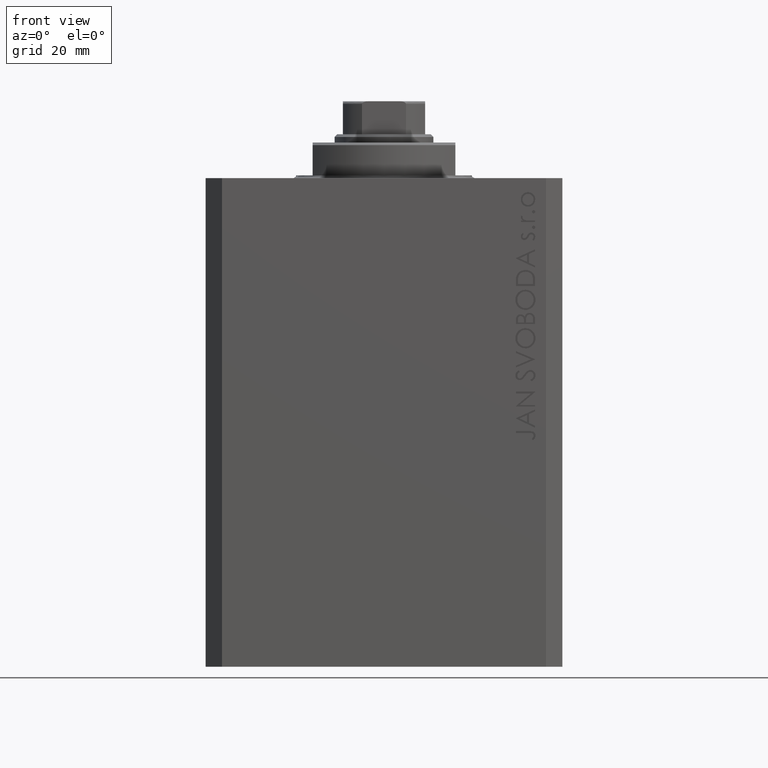
[diagram: clean part render]
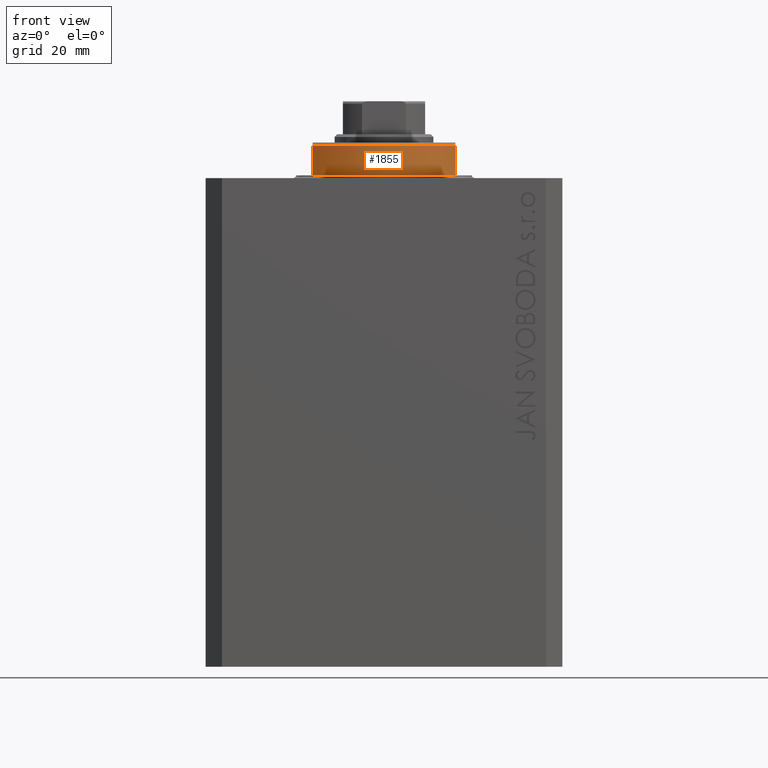
[diagram: same view with one face highlighted and labeled with its STEP entity id]
A machine part, front view. The second image highlights one B-rep face of the part: STEP entity #1855.
In plain terms, the highlighted cylindrical surface (partial cylindrical patch) has radius 16 mm, axis along (0, 0, -1).
Its self-contained STEP definition (entity closure, byte-faithful):
#1471 = EDGE_CURVE ( 'NONE', #20022, #43328, #22181, .T. ) ;
#1799 = DIRECTION ( 'NONE',  ( 1.000000000000000000, 0.000000000000000000, 0.000000000000000000 ) ) ;
#1855 = ADVANCED_FACE ( 'NONE', ( #27358 ), #32588, .T. ) ;
#2316 = VERTEX_POINT ( 'NONE', #42524 ) ;
#2938 = DIRECTION ( 'NONE',  ( 1.000000000000000000, 0.000000000000000000, 0.000000000000000000 ) ) ;
#3307 = VECTOR ( 'NONE', #11570, 1000.000000000000000 ) ;
#3411 = CARTESIAN_POINT ( 'NONE',  ( 0.000000000000000000, 0.000000000000000000, -6.500000000000000000 ) ) ;
#3580 = EDGE_CURVE ( 'NONE', #2316, #12103, #29535, .T. ) ;
#8202 = ORIENTED_EDGE ( 'NONE', *, *, #40276, .T. ) ;
#8541 = DIRECTION ( 'NONE',  ( 0.000000000000000000, 0.000000000000000000, -1.000000000000000000 ) ) ;
#9196 = ORIENTED_EDGE ( 'NONE', *, *, #1471, .F. ) ;
#9324 = CARTESIAN_POINT ( 'NONE',  ( 13.00000000000000000, -9.327379053088815652, -6.000000000000023981 ) ) ;
#11570 = DIRECTION ( 'NONE',  ( 0.000000000000000000, 0.000000000000000000, -1.000000000000000000 ) ) ;
#12103 = VERTEX_POINT ( 'NONE', #20903 ) ;
#12441 = DIRECTION ( 'NONE',  ( -1.000000000000000000, 0.000000000000000000, 0.000000000000000000 ) ) ;
#14153 = ORIENTED_EDGE ( 'NONE', *, *, #47082, .T. ) ;
#16160 = CARTESIAN_POINT ( 'NONE',  ( 0.000000000000000000, 0.000000000000000000, -0.4999999999999995559 ) ) ;
#20022 = VERTEX_POINT ( 'NONE', #36257 ) ;
#20105 = AXIS2_PLACEMENT_3D ( 'NONE', #3411, #20648, #2938 ) ;
#20648 = DIRECTION ( 'NONE',  ( -0.000000000000000000, -0.000000000000000000, 1.000000000000000000 ) ) ;
#20903 = CARTESIAN_POINT ( 'NONE',  ( -13.00000000000000000, -9.327379053088815652, -6.000000000000023981 ) ) ;
#21608 = ORIENTED_EDGE ( 'NONE', *, *, #3580, .T. ) ;
#22181 = LINE ( 'NONE', #30302, #24658 ) ;
#24658 = VECTOR ( 'NONE', #8541, 1000.000000000000000 ) ;
#25287 = AXIS2_PLACEMENT_3D ( 'NONE', #41181, #30630, #12441 ) ;
#26136 = AXIS2_PLACEMENT_3D ( 'NONE', #16160, #41539, #1799 ) ;
#27358 = FACE_OUTER_BOUND ( 'NONE', #46571, .T. ) ;
#29535 = LINE ( 'NONE', #44361, #3307 ) ;
#30302 = CARTESIAN_POINT ( 'NONE',  ( 13.00000000000000000, -9.327379053088813876, -6.500000000000000000 ) ) ;
#30630 = DIRECTION ( 'NONE',  ( 0.000000000000000000, 0.000000000000000000, 1.000000000000000000 ) ) ;
#32588 = CYLINDRICAL_SURFACE ( 'NONE', #20105, 16.00000000000000000 ) ;
#36257 = CARTESIAN_POINT ( 'NONE',  ( 13.00000000000000000, -9.327379053088815652, -0.4999999999999995559 ) ) ;
#40276 = EDGE_CURVE ( 'NONE', #12103, #43328, #42862, .T. ) ;
#40654 = CIRCLE ( 'NONE', #26136, 16.00000000000000000 ) ;
#41181 = CARTESIAN_POINT ( 'NONE',  ( 0.000000000000000000, 0.000000000000000000, -6.000000000000023981 ) ) ;
#41539 = DIRECTION ( 'NONE',  ( -0.000000000000000000, -0.000000000000000000, -1.000000000000000000 ) ) ;
#42524 = CARTESIAN_POINT ( 'NONE',  ( -13.00000000000000000, -9.327379053088815652, -0.4999999999999995559 ) ) ;
#42862 = CIRCLE ( 'NONE', #25287, 16.00000000000000000 ) ;
#43328 = VERTEX_POINT ( 'NONE', #9324 ) ;
#44361 = CARTESIAN_POINT ( 'NONE',  ( -13.00000000000000000, -9.327379053088813876, -6.500000000000000000 ) ) ;
#46571 = EDGE_LOOP ( 'NONE', ( #9196, #14153, #21608, #8202 ) ) ;
#47082 = EDGE_CURVE ( 'NONE', #20022, #2316, #40654, .T. ) ;